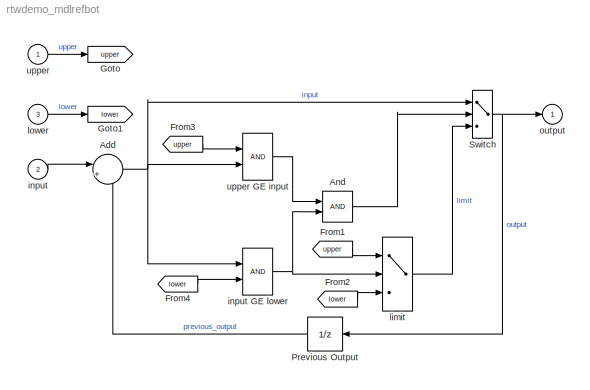
MODEL rtwdemo_mdlrefbot
KIND model
BLOCK [Inport]  input
  IconDisplay = Port number
  LatchInput = off
  Port = 2
BLOCK [RelationalOperator]  input GE lower
  AttributesFormatString = \\n
  Priority = 1
BLOCK [Switch]  limit
  Threshold = 0.5
BLOCK [Inport]  upper
  IconDisplay = Port number
  LatchInput = off
  Port = 1
BLOCK [Sum] Add
  IconShape = round
  InputSameDT = off
  Inputs = |++
  OutDataTypeMode = Inherit via internal rule
  OutScaling = 2^-10
  Ports = [2, 1]
  SaturateOnIntegerOverflow = off
BLOCK [Logic] And
  Ports = [2, 1]
BLOCK [From] From1
  DialogController = Simulink.DDGSource
  GotoTag = upper
BLOCK [From] From2
  DialogController = Simulink.DDGSource
  GotoTag = lower
BLOCK [From] From3
  DialogController = Simulink.DDGSource
  GotoTag = upper
BLOCK [From] From4
  DialogController = Simulink.DDGSource
  GotoTag = lower
BLOCK [Goto] Goto
  DialogController = Simulink.DDGSource
  GotoTag = upper
  MaskIconFrame = on
  MaskIconOpaque = on
  MaskIconRotate = none
  MaskIconUnits = autoscale
  TagVisibility = local
BLOCK [Goto] Goto1
  DialogController = Simulink.DDGSource
  GotoTag = lower
  MaskIconFrame = on
  MaskIconOpaque = on
  MaskIconRotate = none
  MaskIconUnits = autoscale
  TagVisibility = local
BLOCK [UnitDelay] Previous Output
  SampleTime = -1
BLOCK [Switch] Switch
  Threshold = 0.5
BLOCK [Inport] lower
  IconDisplay = Port number
  LatchInput = off
  Port = 3
BLOCK [Outport] output
  BusOutputAsStruct = off
  IconDisplay = Port number
BLOCK [RelationalOperator] upper GE input
  AttributesFormatString = \\n
  Priority = 0
NET  input GE lower:1 ->  limit:2, And:2
LINE  input:1 -> Add:1
LINE  limit:1 -> Switch:3
LINE  upper:1 -> Goto:1
NET Add:1 ->  input GE lower:1, Switch:1, upper GE input:2
LINE And:1 -> Switch:2
LINE From1:1 ->  limit:1
LINE From2:1 ->  limit:3
LINE From3:1 -> upper GE input:1
LINE From4:1 ->  input GE lower:2
LINE Previous Output:1 -> Add:2
NET Switch:1 -> Previous Output:1, output:1
LINE lower:1 -> Goto1:1
LINE upper GE input:1 -> And:1
note: NET lines group one-source signal fan-out (src -> all destinations, sorted); 1:1 wires keep LINE
